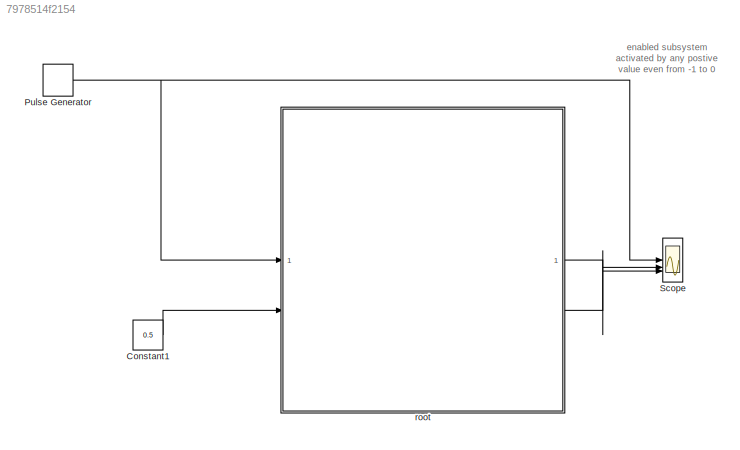
MODEL slx_7978514f2154
KIND model
CONFIG AbsTol = auto
CONFIG EnableMultiTasking = off
CONFIG FixedStep = 0.5
CONFIG MaxStep = auto
CONFIG MinStep = auto
CONFIG RelTol = 1e-3
CONFIG SampleTimeConstraint = Unconstrained
CONFIG SolverName = FixedStepDiscrete
CONFIG StartTime = 0.0
CONFIG StopTime = 10.0
BLOCK [Constant] Constant1
  Value = 0.5
BLOCK [DiscretePulseGenerator] Pulse Generator
  Period = 1
  PulseType = Time based
  PulseWidth = 50
BLOCK [Scope] Scope
  Floating = off
  NumInputPorts = 3
  ScopeSpecificationString = Simulink.scopes.TimeScopeBlockCfg('CurrentConfiguration', extmgr.ConfigurationSet(extmgr.Configuration('Core','General UI',true),extmgr.Configuration('Core','Source UI',true),extmgr.Configuration('Sources','WiredSimulink',true,'DataLoggingSaveFormat','Array','DataLoggingLimitDataPoints',true,'DataLoggingDecimation','1'),extmgr.Configuration('Visuals','Time Domain',true,'SerializedDisplays',{struct...<+3627ch>
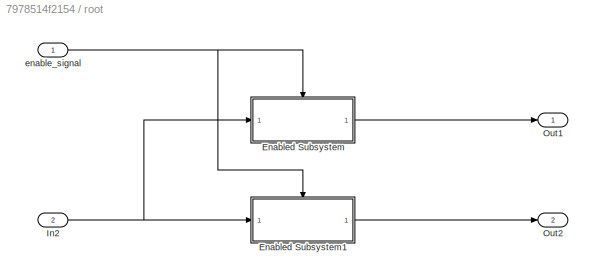
BLOCK [SubSystem] root
  RTWFcnNameOpts = Use subsystem name
  RTWSystemCode = Reusable function
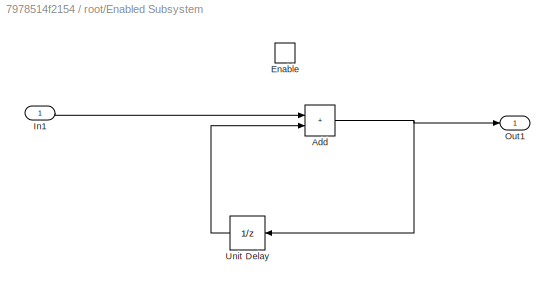
BLOCK [SubSystem] root/Enabled Subsystem
  RTWSystemCode = Nonreusable function
  TreatAsAtomicUnit = on
BLOCK [Sum] root/Enabled Subsystem/Add
  IconShape = rectangular
BLOCK [EnablePort] root/Enabled Subsystem/Enable
BLOCK [Inport] root/Enabled Subsystem/In1
BLOCK [Outport] root/Enabled Subsystem/Out1
BLOCK [UnitDelay] root/Enabled Subsystem/Unit Delay
  HasFrameUpgradeWarning = on
  NameLocation = top
  SampleTime = -1
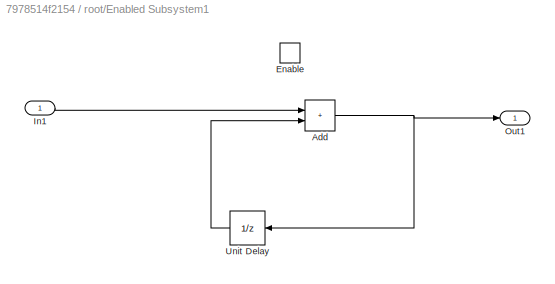
BLOCK [SubSystem] root/Enabled Subsystem1
  RTWSystemCode = Nonreusable function
  TreatAsAtomicUnit = on
BLOCK [Sum] root/Enabled Subsystem1/Add
  IconShape = rectangular
BLOCK [EnablePort] root/Enabled Subsystem1/Enable
  StatesWhenEnabling = reset
BLOCK [Inport] root/Enabled Subsystem1/In1
BLOCK [Outport] root/Enabled Subsystem1/Out1
BLOCK [UnitDelay] root/Enabled Subsystem1/Unit Delay
  HasFrameUpgradeWarning = on
  NameLocation = top
  SampleTime = -1
BLOCK [Inport] root/In2
  Port = 2
BLOCK [Outport] root/Out1
BLOCK [Outport] root/Out2
  Port = 2
BLOCK [Inport] root/enable_signal
ANNOTATION (root): enabled subsystem activated by any postive value even from -1 to 0
LINE Constant1:1 -> root:2
NET Pulse Generator:1 -> Scope:1, root:1
NET root/Enabled Subsystem/Add:1 -> root/Enabled Subsystem/Out1:1, root/Enabled Subsystem/Unit Delay:1
LINE root/Enabled Subsystem/In1:1 -> root/Enabled Subsystem/Add:1
LINE root/Enabled Subsystem/Unit Delay:1 -> root/Enabled Subsystem/Add:2
NET root/Enabled Subsystem1/Add:1 -> root/Enabled Subsystem1/Out1:1, root/Enabled Subsystem1/Unit Delay:1
LINE root/Enabled Subsystem1/In1:1 -> root/Enabled Subsystem1/Add:1
LINE root/Enabled Subsystem1/Unit Delay:1 -> root/Enabled Subsystem1/Add:2
LINE root/Enabled Subsystem1:1 -> root/Out2:1
LINE root/Enabled Subsystem:1 -> root/Out1:1
NET root/In2:1 -> root/Enabled Subsystem1:1, root/Enabled Subsystem:1
NET root/enable_signal:1 -> root/Enabled Subsystem1:enable, root/Enabled Subsystem:enable
LINE root:1 -> Scope:2
LINE root:2 -> Scope:3
note: NET lines group one-source signal fan-out (src -> all destinations, sorted); 1:1 wires keep LINE
